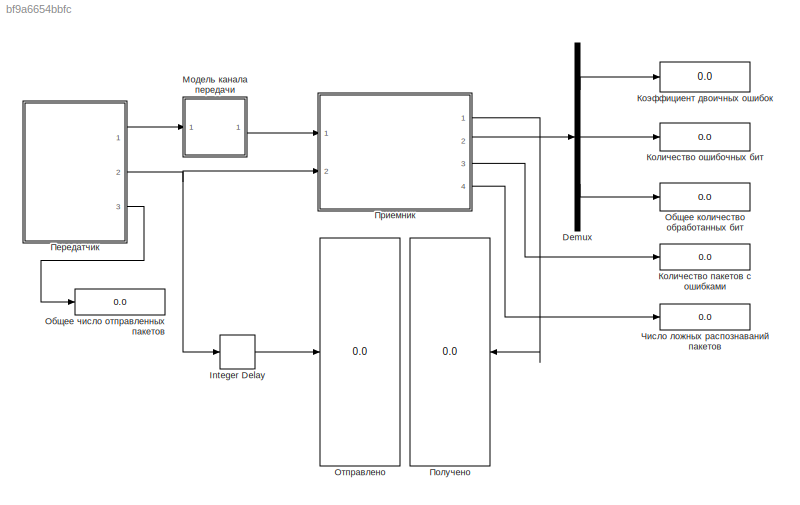
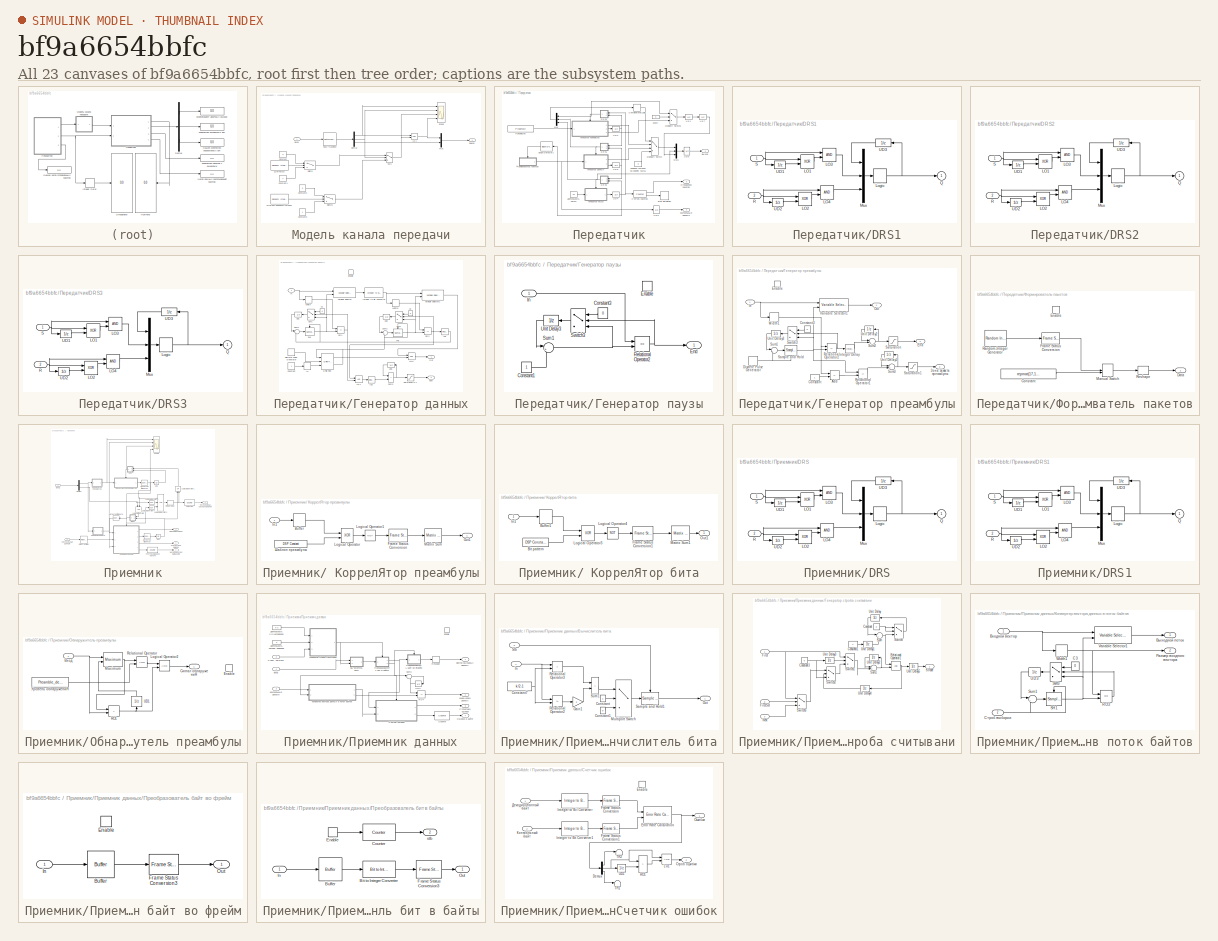
[diagram: thumbnail index - all 23 canvases of the model, root first then tree order]
MODEL slx_bf9a6654bbfc
KIND model
CONFIG AbsTol = auto
CONFIG EnableMultiTasking = on
CONFIG FixedStep = auto
CONFIG MaxStep = auto
CONFIG MinStep = auto
CONFIG PreLoadFcn = initmod
CONFIG RelTol = 1e-3
CONFIG SampleTimeConstraint = Unconstrained
CONFIG SolverName = VariableStepDiscrete
CONFIG StartTime = 0.0
CONFIG StopTime = 1000
BLOCK [Demux] Demux
  DisplayOption = none
  Outputs = 3
  Ports = [1, 3]
BLOCK [Delay] Integer Delay
  DelayLength = 1
  InputPortMap = u0
  Ports = [1, 1]
BLOCK [Display] Количество ошибочных бит
  Decimation = 1
  Ports = [1]
BLOCK [Display] Количество пакетов с ошибками
  Decimation = 1
  Ports = [1]
BLOCK [Display] Коэффициент двоичных ошибок
  Decimation = 1
  Ports = [1]
BLOCK [SubSystem] Модель канала передачи
  Ports = [1, 1]
  RequestExecContextInheritance = off
  TreatAsAtomicUnit = on
BLOCK [Constant] Модель канала передачи/Constant
  Value = 0
BLOCK [Constant] Модель канала передачи/Constant1
BLOCK [Constant] Модель канала передачи/Constant2
  Value = 0
BLOCK [Constant] Модель канала передачи/Constant3
BLOCK [Demux] Модель канала передачи/Demux
  DisplayOption = none
  Outputs = 3
  Ports = [1, 3]
BLOCK [Logic] Модель канала передачи/LO1
  Operator = XOR
  Ports = [2, 1]
BLOCK [Mux] Модель канала передачи/Mux
  DisplayOption = bar
  Inputs = 2
  Ports = [2, 1]
BLOCK [RateTransition] Модель канала передачи/Rate Transition
  Deterministic = off
  OutPortSampleTime = 1/Frc
BLOCK [Switch] Модель канала передачи/SW1
  Threshold = 1
BLOCK [Scope] Модель канала передачи/Scope
  Floating = off
  NumInputPorts = 4
  Ports = [4]
  ScopeSpecificationString = Simulink.scopes.TimeScopeBlockCfg('CurrentConfiguration', extmgr.ConfigurationSet(extmgr.Configuration('Core','General UI',true),extmgr.Configuration('Core','Source UI',true),extmgr.Configuration('Sources','WiredSimulink',true),extmgr.Configuration('Visuals','Time Domain',true,'SerializedDisplays',{struct('MinYLimReal','-0.125','MaxYLimReal','1.125','YLabelReal','','MinYLimMag','0.00000','MaxYLimM...<+3382ch>
BLOCK [Switch] Модель канала передачи/Switch
  InputSameDT = off
  SaturateOnIntegerOverflow = off
  Threshold = 128
BLOCK [Switch] Модель канала передачи/Switch1
  InputSameDT = off
  SaturateOnIntegerOverflow = off
  Threshold = 128
BLOCK [Inport] Модель канала передачи/Вход
BLOCK [Outport] Модель канала передачи/Выход
BLOCK [Reference] Модель канала передачи/Шум паузы  REF=commrandsrc3/Random Integer
Generator
  Ports = [0, 1]
  SourceBlock = commrandsrc3/Random Integer\nGenerator
  SourceProductBaseCode = CM
  SourceType = Random Integer Generator
BLOCK [Reference] Модель канала передачи/Шум при передаче сигнала  REF=commrandsrc3/Random Integer
Generator
  Ports = [0, 1]
  SourceBlock = commrandsrc3/Random Integer\nGenerator
  SourceProductBaseCode = CM
  SourceType = Random Integer Generator
BLOCK [Display] Общее количество обработанных бит
  Decimation = 1
  Ports = [1]
BLOCK [Display] Общее число отправленных пакетов
  Decimation = 1
  Ports = [1]
BLOCK [Display] Отправлено
  Decimation = 1
  Ports = [1]
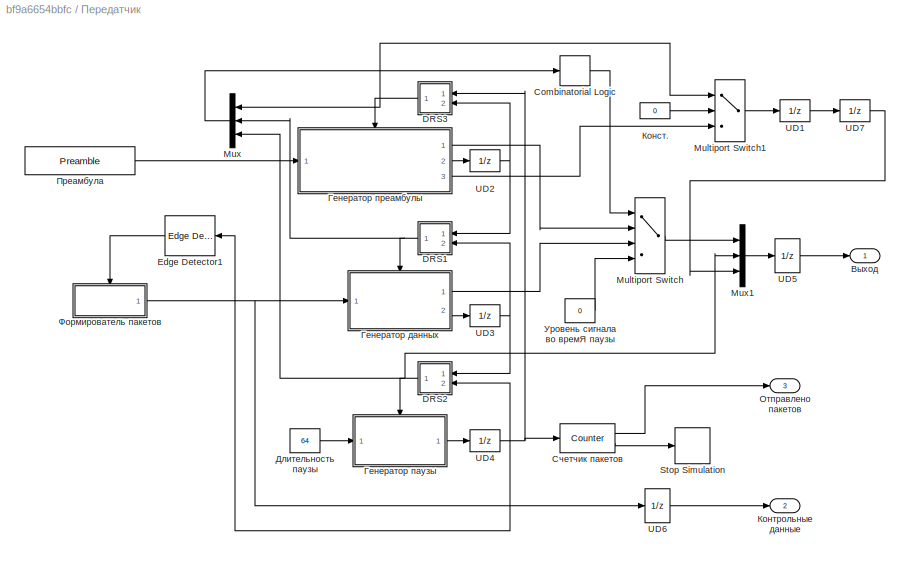
BLOCK [SubSystem] Передатчик
  Ports = [0, 3]
  RequestExecContextInheritance = off
  TreatAsAtomicUnit = on
BLOCK [CombinatorialLogic] Передатчик/Combinatorial Logic
  TruthTable = [1;3;2;2;1;1;1;1]
BLOCK [SubSystem] Передатчик/DRS1
  Ports = [2, 1]
  RequestExecContextInheritance = off
  TreatAsAtomicUnit = on
BLOCK [Logic] Передатчик/DRS1/LO1
  Operator = XOR
  Ports = [2, 1]
BLOCK [Logic] Передатчик/DRS1/LO2
  Operator = XOR
  Ports = [2, 1]
BLOCK [Logic] Передатчик/DRS1/LO3
  Ports = [2, 1]
BLOCK [Logic] Передатчик/DRS1/LO4
  Ports = [2, 1]
BLOCK [CombinatorialLogic] Передатчик/DRS1/Logic
  TruthTable = [0 ;0 ;1 ;0 ;1 ;0 ;1 ;1 ]
BLOCK [Mux] Передатчик/DRS1/Mux
  Inputs = 3
  Ports = [3, 1]
BLOCK [Outport] Передатчик/DRS1/Q
  InitialOutput = 0
BLOCK [Inport] Передатчик/DRS1/R
  Port = 2
BLOCK [Inport] Передатчик/DRS1/S
BLOCK [UnitDelay] Передатчик/DRS1/UD1
  SampleTime = -1
BLOCK [UnitDelay] Передатчик/DRS1/UD2
  SampleTime = -1
BLOCK [UnitDelay] Передатчик/DRS1/UD3
  SampleTime = -1
BLOCK [SubSystem] Передатчик/DRS2
  Ports = [2, 1]
  RequestExecContextInheritance = off
  TreatAsAtomicUnit = on
BLOCK [Logic] Передатчик/DRS2/LO1
  Operator = XOR
  Ports = [2, 1]
BLOCK [Logic] Передатчик/DRS2/LO2
  Operator = XOR
  Ports = [2, 1]
BLOCK [Logic] Передатчик/DRS2/LO3
  Ports = [2, 1]
BLOCK [Logic] Передатчик/DRS2/LO4
  Ports = [2, 1]
BLOCK [CombinatorialLogic] Передатчик/DRS2/Logic
  TruthTable = [0 ;0 ;1 ;0 ;1 ;0 ;1 ;1 ]
BLOCK [Mux] Передатчик/DRS2/Mux
  Inputs = 3
  Ports = [3, 1]
BLOCK [Outport] Передатчик/DRS2/Q
  InitialOutput = 0
BLOCK [Inport] Передатчик/DRS2/R
  Port = 2
BLOCK [Inport] Передатчик/DRS2/S
BLOCK [UnitDelay] Передатчик/DRS2/UD1
  SampleTime = -1
BLOCK [UnitDelay] Передатчик/DRS2/UD2
  SampleTime = -1
BLOCK [UnitDelay] Передатчик/DRS2/UD3
  SampleTime = -1
BLOCK [SubSystem] Передатчик/DRS3
  Ports = [2, 1]
  RequestExecContextInheritance = off
  TreatAsAtomicUnit = on
BLOCK [Logic] Передатчик/DRS3/LO1
  Operator = XOR
  Ports = [2, 1]
BLOCK [Logic] Передатчик/DRS3/LO2
  Operator = XOR
  Ports = [2, 1]
BLOCK [Logic] Передатчик/DRS3/LO3
  Ports = [2, 1]
BLOCK [Logic] Передатчик/DRS3/LO4
  Ports = [2, 1]
BLOCK [CombinatorialLogic] Передатчик/DRS3/Logic
  TruthTable = [0 ;0 ;1 ;0 ;1 ;0 ;1 ;1 ]
BLOCK [Mux] Передатчик/DRS3/Mux
  Inputs = 3
  Ports = [3, 1]
BLOCK [Outport] Передатчик/DRS3/Q
  InitialOutput = 0
BLOCK [Inport] Передатчик/DRS3/R
  Port = 2
BLOCK [Inport] Передатчик/DRS3/S
BLOCK [UnitDelay] Передатчик/DRS3/UD1
  SampleTime = -1
BLOCK [UnitDelay] Передатчик/DRS3/UD2
  SampleTime = -1
BLOCK [UnitDelay] Передатчик/DRS3/UD3
  SampleTime = -1
BLOCK [Reference] Передатчик/Edge Detector1  REF=dspswit3/Edge
Detector
  Ports = [1, 1]
  SourceBlock = dspswit3/Edge\nDetector
  SourceProductBaseCode = DS
  SourceType = Edge Detector
BLOCK [MultiPortSwitch] Передатчик/Multiport Switch
  Ports = [4, 1]
BLOCK [MultiPortSwitch] Передатчик/Multiport Switch1
  DataPortOrder = Zero-based contiguous
  Inputs = 2
  Ports = [3, 1]
  zeroidx = on
BLOCK [Mux] Передатчик/Mux
  DisplayOption = bar
  Inputs = 3
  Ports = [3, 1]
BLOCK [Mux] Передатчик/Mux1
  DisplayOption = bar
  Inputs = 3
  Ports = [3, 1]
BLOCK [Stop] Передатчик/Stop Simulation
BLOCK [UnitDelay] Передатчик/UD1
  SampleTime = -1
BLOCK [UnitDelay] Передатчик/UD2
  SampleTime = -1
BLOCK [UnitDelay] Передатчик/UD3
  InitialCondition = 1
  SampleTime = -1
BLOCK [UnitDelay] Передатчик/UD4
  SampleTime = -1
BLOCK [UnitDelay] Передатчик/UD5
  SampleTime = 1/(Ftr*4)
BLOCK [UnitDelay] Передатчик/UD6
  SampleTime = 1/(Ftr*4)
BLOCK [UnitDelay] Передатчик/UD7
  SampleTime = -1
BLOCK [Outport] Передатчик/Выход
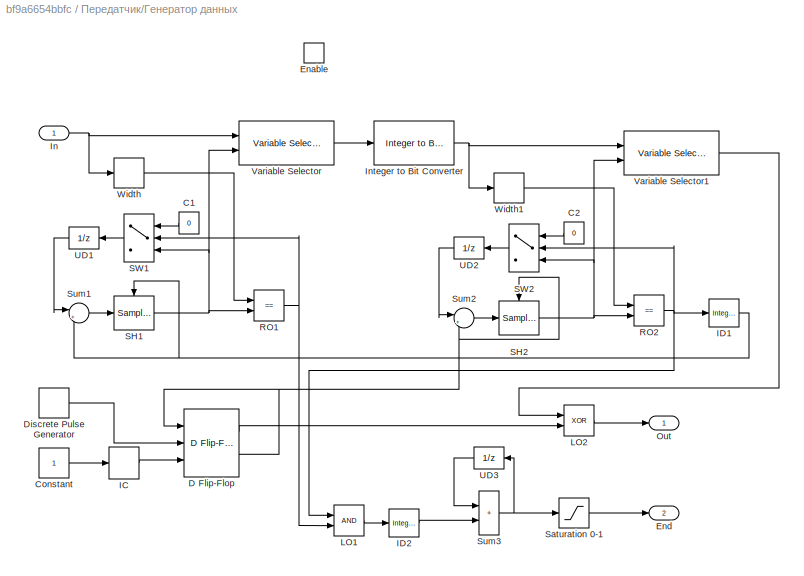
BLOCK [SubSystem] Передатчик/Генератор данных
  Ports = [1, 2, 1]
  RequestExecContextInheritance = off
  TreatAsAtomicUnit = on
BLOCK [Constant] Передатчик/Генератор данных/C1
  NameLocation = top
  Value = 0
BLOCK [Constant] Передатчик/Генератор данных/C2
  NameLocation = top
  Value = 0
BLOCK [Constant] Передатчик/Генератор данных/Constant
BLOCK [Reference] Передатчик/Генератор данных/D Flip-Flop  REF=simulink_extras/Flip Flops/D Flip-Flop
  Ports = [3, 2]
  SourceBlock = simulink_extras/Flip Flops/D Flip-Flop
  SourceProductBaseCode = SL
  SourceType = DFlipFlop
BLOCK [DiscretePulseGenerator] Передатчик/Генератор данных/Discrete Pulse Generator
  Ports = [0, 1]
  SampleTime = 1/(Ftr*4)
BLOCK [EnablePort] Передатчик/Генератор данных/Enable
  Ports = []
  StatesWhenEnabling = reset
BLOCK [Outport] Передатчик/Генератор данных/End
  InitialOutput = [0]
  Port = 2
BLOCK [InitialCondition] Передатчик/Генератор данных/IC
  Value = 0
BLOCK [Reference] Передатчик/Генератор данных/ID1  REF=dspobslib/Integer Delay
  Ports = [1, 1]
  SourceBlock = dspobslib/Integer Delay
  SourceProductBaseCode = DS
  SourceType = Integer Delay
BLOCK [Reference] Передатчик/Генератор данных/ID2  REF=dspobslib/Integer Delay
  Ports = [1, 1]
  SourceBlock = dspobslib/Integer Delay
  SourceProductBaseCode = DS
  SourceType = Integer Delay
BLOCK [Inport] Передатчик/Генератор данных/In
BLOCK [Reference] Передатчик/Генератор данных/Integer to Bit Converter  REF=commutil2/Integer to Bit
Converter
  Ports = [1, 1]
  SourceBlock = commutil2/Integer to Bit\nConverter
  SourceProductBaseCode = CM
  SourceType = Integer to Bit Converter
BLOCK [Logic] Передатчик/Генератор данных/LO1
  Ports = [2, 1]
BLOCK [Logic] Передатчик/Генератор данных/LO2
  Operator = XOR
  Ports = [2, 1]
BLOCK [Outport] Передатчик/Генератор данных/Out
  InitialOutput = [0]
BLOCK [RelationalOperator] Передатчик/Генератор данных/RO1
  Operator = ==
  Ports = [2, 1]
BLOCK [RelationalOperator] Передатчик/Генератор данных/RO2
  Operator = ==
  Ports = [2, 1]
BLOCK [Reference] Передатчик/Генератор данных/SH1  REF=dspsigops/Sample
and Hold
  Ports = [1, 1, 0, 1]
  SourceBlock = dspsigops/Sample\nand Hold
  SourceProductBaseCode = DS
  SourceType = Sample and Hold
BLOCK [Reference] Передатчик/Генератор данных/SH2  REF=dspsigops/Sample
and Hold
  Ports = [1, 1, 0, 1]
  SourceBlock = dspsigops/Sample\nand Hold
  SourceProductBaseCode = DS
  SourceType = Sample and Hold
BLOCK [Switch] Передатчик/Генератор данных/SW1
  Threshold = 1
BLOCK [Switch] Передатчик/Генератор данных/SW2
  Threshold = 1
BLOCK [Saturate] Передатчик/Генератор данных/Saturation 0-1
  LowerLimit = 0
  UpperLimit = 1
BLOCK [Sum] Передатчик/Генератор данных/Sum1
  InputSameDT = on
  Inputs = |++
  NameLocation = top
  OutDataTypeStr = Inherit: Same as first input
  Ports = [2, 1]
  SaturateOnIntegerOverflow = on
BLOCK [Sum] Передатчик/Генератор данных/Sum2
  InputSameDT = on
  Inputs = |++
  NameLocation = top
  OutDataTypeStr = Inherit: Same as first input
  Ports = [2, 1]
  SaturateOnIntegerOverflow = on
BLOCK [Sum] Передатчик/Генератор данных/Sum3
  IconShape = rectangular
  InputSameDT = on
  OutDataTypeStr = Inherit: Same as first input
  Ports = [2, 1]
  SaturateOnIntegerOverflow = on
BLOCK [UnitDelay] Передатчик/Генератор данных/UD1
  SampleTime = -1
BLOCK [UnitDelay] Передатчик/Генератор данных/UD2
  SampleTime = -1
BLOCK [UnitDelay] Передатчик/Генератор данных/UD3
  SampleTime = -1
BLOCK [Reference] Передатчик/Генератор данных/Variable Selector  REF=dspindex/Variable
Selector
  Ports = [2, 1]
  SourceBlock = dspindex/Variable\nSelector
  SourceProductBaseCode = DS
  SourceType = Variable Selector
BLOCK [Reference] Передатчик/Генератор данных/Variable Selector1  REF=dspindex/Variable
Selector
  Ports = [2, 1]
  SourceBlock = dspindex/Variable\nSelector
  SourceProductBaseCode = DS
  SourceType = Variable Selector
BLOCK [Width] Передатчик/Генератор данных/Width
BLOCK [Width] Передатчик/Генератор данных/Width1
BLOCK [SubSystem] Передатчик/Генератор паузы
  Ports = [1, 1, 1]
  RequestExecContextInheritance = off
  TreatAsAtomicUnit = on
BLOCK [Constant] Передатчик/Генератор паузы/Constant1
BLOCK [Constant] Передатчик/Генератор паузы/Constant3
  Value = 0
BLOCK [EnablePort] Передатчик/Генератор паузы/Enable
  Ports = []
  StatesWhenEnabling = reset
BLOCK [Outport] Передатчик/Генератор паузы/End
  InitialOutput = [0]
BLOCK [Inport] Передатчик/Генератор паузы/In
BLOCK [RelationalOperator] Передатчик/Генератор паузы/Relational Operator2
  Operator = ==
  Ports = [2, 1]
BLOCK [Sum] Передатчик/Генератор паузы/Sum1
  InputSameDT = on
  Inputs = |++
  OutDataTypeStr = Inherit: Same as first input
  Ports = [2, 1]
  SaturateOnIntegerOverflow = on
BLOCK [Switch] Передатчик/Генератор паузы/Switch3
  Threshold = 1
BLOCK [UnitDelay] Передатчик/Генератор паузы/Unit Delay3
  SampleTime = -1
BLOCK [SubSystem] Передатчик/Генератор преамбулы
  Ports = [1, 3, 1]
  RequestExecContextInheritance = off
  TreatAsAtomicUnit = on
BLOCK [Sum] Передатчик/Генератор преамбулы/Add
  IconShape = rectangular
  Inputs = +-
  Ports = [2, 1]
BLOCK [Constant] Передатчик/Генератор преамбулы/Constant
BLOCK [Constant] Передатчик/Генератор преамбулы/Constant3
  Value = 0
BLOCK [DiscretePulseGenerator] Передатчик/Генератор преамбулы/Discrete Pulse Generator
  Ports = [0, 1]
  SampleTime = 1/(Ftr*4)
BLOCK [EnablePort] Передатчик/Генератор преамбулы/Enable
  Ports = []
  StatesWhenEnabling = reset
BLOCK [Outport] Передатчик/Генератор преамбулы/End
  InitialOutput = [0]
  Port = 2
BLOCK [Inport] Передатчик/Генератор преамбулы/In
BLOCK [Reference] Передатчик/Генератор преамбулы/Integer Delay  REF=dspobslib/Integer Delay
  Ports = [1, 1]
  SourceBlock = dspobslib/Integer Delay
  SourceProductBaseCode = DS
  SourceType = Integer Delay
BLOCK [Outport] Передатчик/Генератор преамбулы/Out
  InitialOutput = [0]
BLOCK [RelationalOperator] Передатчик/Генератор преамбулы/Relational Operator1
  Operator = ==
  Ports = [2, 1]
BLOCK [RelationalOperator] Передатчик/Генератор преамбулы/Relational Operator2
  Operator = ==
  Ports = [2, 1]
BLOCK [Reference] Передатчик/Генератор преамбулы/Sample and Hold  REF=dspsigops/Sample
and Hold
  NameLocation = top
  Ports = [1, 1, 0, 1]
  SourceBlock = dspsigops/Sample\nand Hold
  SourceProductBaseCode = DS
  SourceType = Sample and Hold
BLOCK [Saturate] Передатчик/Генератор преамбулы/Saturation
  LowerLimit = 0
  UpperLimit = 1
BLOCK [Saturate] Передатчик/Генератор преамбулы/Saturation1
  LowerLimit = 0
  UpperLimit = 1
BLOCK [Sum] Передатчик/Генератор преамбулы/Sum1
  InputSameDT = on
  Inputs = |++
  OutDataTypeStr = Inherit: Same as first input
  Ports = [2, 1]
  SaturateOnIntegerOverflow = on
BLOCK [Sum] Передатчик/Генератор преамбулы/Sum2
  InputSameDT = on
  Inputs = |++
  OutDataTypeStr = Inherit: Same as first input
  Ports = [2, 1]
  SaturateOnIntegerOverflow = on
BLOCK [Sum] Передатчик/Генератор преамбулы/Sum3
  InputSameDT = on
  Inputs = |++
  OutDataTypeStr = Inherit: Same as first input
  Ports = [2, 1]
  SaturateOnIntegerOverflow = on
BLOCK [Switch] Передатчик/Генератор преамбулы/Switch3
  Threshold = 1
BLOCK [UnitDelay] Передатчик/Генератор преамбулы/Unit Delay1
  SampleTime = -1
BLOCK [UnitDelay] Передатчик/Генератор преамбулы/Unit Delay2
  SampleTime = -1
BLOCK [UnitDelay] Передатчик/Генератор преамбулы/Unit Delay3
  SampleTime = -1
BLOCK [Reference] Передатчик/Генератор преамбулы/Variable Selector1  REF=dspindex/Variable
Selector
  Ports = [2, 1]
  SourceBlock = dspindex/Variable\nSelector
  SourceProductBaseCode = DS
  SourceType = Variable Selector
BLOCK [Width] Передатчик/Генератор преамбулы/Width1
BLOCK [Outport] Передатчик/Генератор преамбулы/Зона захвата преамбулы
  InitialOutput = [0]
  Port = 3
BLOCK [Constant] Передатчик/Длительность паузы
  Value = 64
BLOCK [Constant] Передатчик/Конст.
  Value = 0
BLOCK [Outport] Передатчик/Контрольные данные
  Port = 2
BLOCK [Outport] Передатчик/Отправлено пакетов
  Port = 3
BLOCK [Constant] Передатчик/Преамбула
  Value = Preamble
BLOCK [Reference] Передатчик/Счетчик пакетов  REF=dspswit3/Counter
  Ports = [1, 2]
  SourceBlock = dspswit3/Counter
  SourceProductBaseCode = DS
  SourceType = Counter
BLOCK [Constant] Передатчик/Уровень сигнала во времЯ паузы
  Value = 0
BLOCK [SubSystem] Передатчик/Формирователь пакетов
  Ports = [0, 1, 1]
  RequestExecContextInheritance = off
  TreatAsAtomicUnit = on
BLOCK [Constant] Передатчик/Формирователь пакетов/Constant
  OutDataTypeStr = uint8
  Value = repmat(17,1,pack_len)
BLOCK [Outport] Передатчик/Формирователь пакетов/Data
BLOCK [EnablePort] Передатчик/Формирователь пакетов/Enable
  Ports = []
BLOCK [Reference] Передатчик/Формирователь пакетов/Frame Status Conversion  REF=dspobslib/Frame Status
Conversion
  Ports = [1, 1]
  SourceBlock = dspobslib/Frame Status\nConversion
  SourceProductBaseCode = DS
  SourceType = Frame Status Conversion
BLOCK [ManualSwitch] Передатчик/Формирователь пакетов/Manual Switch
BLOCK [Reference] Передатчик/Формирователь пакетов/Random-Integer Generator  REF=commrandsrc2/Random Integer
Generator
  Ports = [0, 1]
  SourceBlock = commrandsrc2/Random Integer\nGenerator
  SourceProductBaseCode = CM
  SourceType = Random Integer Generator
BLOCK [Reshape] Передатчик/Формирователь пакетов/Reshape
  Ports = [1, 1]
BLOCK [Display] Получено
  Decimation = 1
  Ports = [1]
BLOCK [SubSystem] Приемник
  Ports = [2, 4]
  RequestExecContextInheritance = off
  TreatAsAtomicUnit = on
BLOCK [SubSystem] Приемник/ КоррелЯтор бита
  Ports = [1, 1]
  RequestExecContextInheritance = off
  TreatAsAtomicUnit = on
BLOCK [Reference] Приемник/ КоррелЯтор бита/Bit pattern  REF=dspobslib/DSP
Constant
  Ports = [0, 1]
  SourceBlock = dspobslib/DSP\nConstant
  SourceProductBaseCode = DS
  SourceType = DSP Constant
BLOCK [Buffer] Приемник/ КоррелЯтор бита/Buffer1
  N = Bit_pat_len
  V = Bit_pat_len-1
BLOCK [Reference] Приемник/ КоррелЯтор бита/Frame Status Conversion1  REF=dspobslib/Frame Status
Conversion
  Ports = [1, 1]
  SourceBlock = dspobslib/Frame Status\nConversion
  SourceProductBaseCode = DS
  SourceType = Frame Status Conversion
BLOCK [Inport] Приемник/ КоррелЯтор бита/In1
BLOCK [Logic] Приемник/ КоррелЯтор бита/Logical Operator3
  Operator = XOR
  Ports = [2, 1]
BLOCK [Logic] Приемник/ КоррелЯтор бита/Logical Operator4
  Operator = NOT
  Ports = [1, 1]
BLOCK [Reference] Приемник/ КоррелЯтор бита/Matrix Sum1  REF=dspobslib/Matrix
Sum
  Ports = [1, 1]
  SourceBlock = dspobslib/Matrix\nSum
  SourceProductBaseCode = DS
  SourceType = Matrix Sum
BLOCK [Outport] Приемник/ КоррелЯтор бита/Out1
BLOCK [SubSystem] Приемник/ КоррелЯтор преамбулы
  Ports = [1, 1]
  RequestExecContextInheritance = off
  TreatAsAtomicUnit = on
BLOCK [Buffer] Приемник/ КоррелЯтор преамбулы/Buffer
  N = Preamble_pat_len
  V = Preamble_pat_len-1
BLOCK [Reference] Приемник/ КоррелЯтор преамбулы/Frame Status Conversion  REF=dspobslib/Frame Status
Conversion
  Ports = [1, 1]
  SourceBlock = dspobslib/Frame Status\nConversion
  SourceProductBaseCode = DS
  SourceType = Frame Status Conversion
BLOCK [Inport] Приемник/ КоррелЯтор преамбулы/In1
BLOCK [Logic] Приемник/ КоррелЯтор преамбулы/Logical Operator
  Operator = XOR
  Ports = [2, 1]
BLOCK [Logic] Приемник/ КоррелЯтор преамбулы/Logical Operator1
  Operator = NOT
  Ports = [1, 1]
BLOCK [Reference] Приемник/ КоррелЯтор преамбулы/Matrix Sum  REF=dspobslib/Matrix
Sum
  Ports = [1, 1]
  SourceBlock = dspobslib/Matrix\nSum
  SourceProductBaseCode = DS
  SourceType = Matrix Sum
BLOCK [Outport] Приемник/ КоррелЯтор преамбулы/Out1
BLOCK [Reference] Приемник/ КоррелЯтор преамбулы/Шаблон преамбулы  REF=dspobslib/DSP
Constant
  Ports = [0, 1]
  SourceBlock = dspobslib/DSP\nConstant
  SourceProductBaseCode = DS
  SourceType = DSP Constant
BLOCK [SubSystem] Приемник/DRS
  Ports = [2, 1]
  RequestExecContextInheritance = off
  TreatAsAtomicUnit = on
BLOCK [Logic] Приемник/DRS/LO1
  Operator = XOR
  Ports = [2, 1]
BLOCK [Logic] Приемник/DRS/LO2
  Operator = XOR
  Ports = [2, 1]
BLOCK [Logic] Приемник/DRS/LO3
  Ports = [2, 1]
BLOCK [Logic] Приемник/DRS/LO4
  Ports = [2, 1]
BLOCK [CombinatorialLogic] Приемник/DRS/Logic
  TruthTable = [0 ;0 ;1 ;0 ;1 ;0 ;1 ;1 ]
BLOCK [Mux] Приемник/DRS/Mux
  Inputs = 3
  Ports = [3, 1]
BLOCK [Outport] Приемник/DRS/Q
  InitialOutput = 0
BLOCK [Inport] Приемник/DRS/R
  Port = 2
BLOCK [Inport] Приемник/DRS/S
BLOCK [UnitDelay] Приемник/DRS/UD1
  SampleTime = -1
BLOCK [UnitDelay] Приемник/DRS/UD2
  SampleTime = -1
BLOCK [UnitDelay] Приемник/DRS/UD3
  SampleTime = -1
BLOCK [SubSystem] Приемник/DRS1
  Ports = [2, 1]
  RequestExecContextInheritance = off
  TreatAsAtomicUnit = on
BLOCK [Logic] Приемник/DRS1/LO1
  Operator = XOR
  Ports = [2, 1]
BLOCK [Logic] Приемник/DRS1/LO2
  Operator = XOR
  Ports = [2, 1]
BLOCK [Logic] Приемник/DRS1/LO3
  Ports = [2, 1]
BLOCK [Logic] Приемник/DRS1/LO4
  Ports = [2, 1]
BLOCK [CombinatorialLogic] Приемник/DRS1/Logic
  TruthTable = [0 ;0 ;1 ;0 ;1 ;0 ;1 ;1 ]
BLOCK [Mux] Приемник/DRS1/Mux
  Inputs = 3
  Ports = [3, 1]
BLOCK [Outport] Приемник/DRS1/Q
  InitialOutput = 0
BLOCK [Inport] Приемник/DRS1/R
  Port = 2
BLOCK [Inport] Приемник/DRS1/S
BLOCK [UnitDelay] Приемник/DRS1/UD1
  SampleTime = -1
BLOCK [UnitDelay] Приемник/DRS1/UD2
  SampleTime = -1
BLOCK [UnitDelay] Приемник/DRS1/UD3
  SampleTime = -1
BLOCK [Demux] Приемник/Demux
  Outputs = 2
  Ports = [1, 2]
BLOCK [Delay] Приемник/Integer Delay
  InputPortMap = u0
  Ports = [1, 1]
BLOCK [Logic] Приемник/Logical Operator
  AllPortsSameDT = off
  NameLocation = left
  Ports = [2, 1]
BLOCK [Logic] Приемник/Logical Operator1
  AllPortsSameDT = off
  NameLocation = left
  Operator = OR
  Ports = [2, 1]
BLOCK [Logic] Приемник/Logical Operator2
  AllPortsSameDT = off
  Inputs = 3
  NameLocation = top
  Ports = [3, 1]
BLOCK [Logic] Приемник/Logical Operator3
  AllPortsSameDT = off
  Inputs = 1
  NameLocation = top
  Operator = NOT
  OutDataTypeStr = boolean
  Ports = [1, 1]
BLOCK [Logic] Приемник/Logical Operator4
  AllPortsSameDT = off
  Inputs = 1
  NameLocation = top
  Operator = NOT
  OutDataTypeStr = boolean
  Ports = [1, 1]
BLOCK [RateTransition] Приемник/Rate Transition
  Deterministic = off
  OutPortSampleTime = 1/Frc
BLOCK [Scope] Приемник/Scope
  Floating = off
  NumInputPorts = 4
  Ports = [4]
  ScopeSpecificationString = Simulink.scopes.TimeScopeBlockCfg('CurrentConfiguration', extmgr.ConfigurationSet(extmgr.Configuration('Core','General UI',true),extmgr.Configuration('Core','Source UI',true),extmgr.Configuration('Sources','WiredSimulink',true,'DataLoggingVariableName','ScopeData1'),extmgr.Configuration('Visuals','Time Domain',true,'SerializedDisplays',{struct('MinYLimReal','9.5','MaxYLimReal','54.5','YLabelReal',...<+3431ch>
BLOCK [UnitDelay] Приемник/UD1
  SampleTime = -1
BLOCK [UnitDelay] Приемник/UD2
  InitialCondition = 1
  SampleTime = -1
BLOCK [Inport] Приемник/Вход 
BLOCK [Outport] Приемник/Выход декодера
BLOCK [Reference] Приемник/Детектор фронта  REF=dspswit3/Edge
Detector
  Ports = [1, 1]
  SourceBlock = dspswit3/Edge\nDetector
  SourceProductBaseCode = DS
  SourceType = Edge Detector
BLOCK [Reference] Приемник/Детектор фронта1  REF=dspswit3/Edge
Detector
  NameLocation = top
  Ports = [1, 1]
  SourceBlock = dspswit3/Edge\nDetector
  SourceProductBaseCode = DS
  SourceType = Edge Detector
BLOCK [Reference] Приемник/Детектор фронта2  REF=dspswit3/Edge
Detector
  NameLocation = top
  Ports = [1, 1]
  SourceBlock = dspswit3/Edge\nDetector
  SourceProductBaseCode = DS
  SourceType = Edge Detector
BLOCK [Inport] Приемник/Контрольные данные
  Port = 2
BLOCK [SubSystem] Приемник/Обнаружитель преамбулы
  Ports = [1, 1, 1]
  RequestExecContextInheritance = off
  TreatAsAtomicUnit = on
BLOCK [EnablePort] Приемник/Обнаружитель преамбулы/Enable
  Ports = []
  StatesWhenEnabling = reset
BLOCK [Logic] Приемник/Обнаружитель преамбулы/Logical Operator2
  Ports = [2, 1]
BLOCK [Reference] Приемник/Обнаружитель преамбулы/Maximum  REF=dspstat3/Maximum
  Ports = [2, 1]
  SourceBlock = dspstat3/Maximum
  SourceProductBaseCode = DS
  SourceType = Maximum
BLOCK [RelationalOperator] Приемник/Обнаружитель преамбулы/RO1
  Operator = >
  Ports = [2, 1]
BLOCK [RelationalOperator] Приемник/Обнаружитель преамбулы/Relational Operator
  Ports = [2, 1]
BLOCK [UnitDelay] Приемник/Обнаружитель преамбулы/UD1
  NameLocation = right
  SampleTime = -1
BLOCK [Inport] Приемник/Обнаружитель преамбулы/Вход
BLOCK [Outport] Приемник/Обнаружитель преамбулы/Сигнал обнаружениЯ
  InitialOutput = [0]
BLOCK [Constant] Приемник/Обнаружитель преамбулы/Уровень обнаружениЯ
  Value = Preamble_decis_levl
BLOCK [SubSystem] Приемник/Приемник данных
  Ports = [3, 4, 1]
  RequestExecContextInheritance = off
  TreatAsAtomicUnit = on
BLOCK [Reference] Приемник/Приемник данных/Counter  REF=dspswit3/Counter
  Ports = [1, 1]
  SourceBlock = dspswit3/Counter
  SourceProductBaseCode = DS
  SourceType = Counter
BLOCK [EnablePort] Приемник/Приемник данных/Enable
  Ports = []
  StatesWhenEnabling = reset
BLOCK [RelationalOperator] Приемник/Приемник данных/RO4
  Operator = ==
  Ports = [2, 1]
BLOCK [Reshape] Приемник/Приемник данных/Reshape
  Ports = [1, 1]
BLOCK [Sum] Приемник/Приемник данных/Sum3
  InputSameDT = on
  Inputs = |++
  NameLocation = top
  OutDataTypeStr = Inherit: Same as first input
  Ports = [2, 1]
  SaturateOnIntegerOverflow = on
BLOCK [UnitDelay] Приемник/Приемник данных/UD2
  SampleTime = -1
BLOCK [Outport] Приемник/Приемник данных/Вектор выходных данных
  InitialOutput = [0]
BLOCK [Inport] Приемник/Приемник данных/Вход
BLOCK [SubSystem] Приемник/Приемник данных/Вычислитель бита
  Ports = [2, 1]
  RequestExecContextInheritance = off
  TreatAsAtomicUnit = on
BLOCK [Constant] Приемник/Приемник данных/Вычислитель бита/Constant
BLOCK [Constant] Приемник/Приемник данных/Вычислитель бита/Constant1
  Value = 0
BLOCK [Constant] Приемник/Приемник данных/Вычислитель бита/Constant7
  Value = k/2-1
BLOCK [Gain] Приемник/Приемник данных/Вычислитель бита/Gain1
  Gain = 2
  OutDataTypeStr = Inherit: Same as input
  ParamDataTypeStr = Inherit: Same as input
  SaturateOnIntegerOverflow = on
BLOCK [Inport] Приемник/Приемник данных/Вычислитель бита/In
BLOCK [MultiPortSwitch] Приемник/Приемник данных/Вычислитель бита/Multiport Switch
  Inputs = 2
  Ports = [3, 1]
BLOCK [Outport] Приемник/Приемник данных/Вычислитель бита/Out
BLOCK [RelationalOperator] Приемник/Приемник данных/Вычислитель бита/Relational Operator2
  Operator = <=
  Ports = [2, 1]
BLOCK [RelationalOperator] Приемник/Приемник данных/Вычислитель бита/Relational Operator3
  Operator = >
  Ports = [2, 1]
BLOCK [Reference] Приемник/Приемник данных/Вычислитель бита/Sample and Hold1  REF=dspsigops/Sample
and Hold
  Ports = [1, 1, 0, 1]
  SourceBlock = dspsigops/Sample\nand Hold
  SourceProductBaseCode = DS
  SourceType = Sample and Hold
BLOCK [Inport] Приемник/Приемник данных/Вычислитель бита/Stb
  Port = 2
BLOCK [Sum] Приемник/Приемник данных/Вычислитель бита/Sum1
  IconShape = rectangular
  InputSameDT = on
  OutDataTypeStr = Inherit: Same as first input
  Ports = [2, 1]
  SaturateOnIntegerOverflow = on
BLOCK [SubSystem] Приемник/Приемник данных/Генератор строба считывани
  Ports = [3, 1]
  RequestExecContextInheritance = off
BLOCK [Constant] Приемник/Приемник данных/Генератор строба считывани/Constant
  Value = 0
BLOCK [Constant] Приемник/Приемник данных/Генератор строба считывани/Constant1
BLOCK [Constant] Приемник/Приемник данных/Генератор строба считывани/Constant3
  Value = 0
BLOCK [Inport] Приемник/Приемник данных/Генератор строба считывани/First
BLOCK [Inport] Приемник/Приемник данных/Генератор строба считывани/FirstSel
  Port = 3
BLOCK [Inport] Приемник/Приемник данных/Генератор строба считывани/Next
  Port = 2
BLOCK [RelationalOperator] Приемник/Приемник данных/Генератор строба считывани/Relational Operator1
  Ports = [2, 1]
BLOCK [Outport] Приемник/Приемник данных/Генератор строба считывани/Strobe
BLOCK [Sum] Приемник/Приемник данных/Генератор строба считывани/Sum
  InputSameDT = on
  Inputs = |++
  OutDataTypeStr = Inherit: Same as first input
  Ports = [2, 1]
  SaturateOnIntegerOverflow = on
BLOCK [Sum] Приемник/Приемник данных/Генератор строба считывани/Sum1
  InputSameDT = on
  Inputs = |++
  OutDataTypeStr = Inherit: Same as first input
  Ports = [2, 1]
  SaturateOnIntegerOverflow = on
BLOCK [Switch] Приемник/Приемник данных/Генератор строба считывани/Switch
  Threshold = 1
BLOCK [Switch] Приемник/Приемник данных/Генератор строба считывани/Switch1
  Threshold = 1
BLOCK [Switch] Приемник/Приемник данных/Генератор строба считывани/Switch2
  Threshold = 1
BLOCK [Switch] Приемник/Приемник данных/Генератор строба считывани/Switch3
  Threshold = 1
BLOCK [UnitDelay] Приемник/Приемник данных/Генератор строба считывани/Unit Delay
  SampleTime = -1
BLOCK [UnitDelay] Приемник/Приемник данных/Генератор строба считывани/Unit Delay1
  SampleTime = -1
BLOCK [UnitDelay] Приемник/Приемник данных/Генератор строба считывани/Unit Delay2
  SampleTime = -1
BLOCK [UnitDelay] Приемник/Приемник данных/Генератор строба считывани/Unit Delay3
  InitialCondition = 1
  SampleTime = -1
BLOCK [UnitDelay] Приемник/Приемник данных/Генератор строба считывани/Unit Delay4
  SampleTime = -1
BLOCK [UnitDelay] Приемник/Приемник данных/Генератор строба считывани/Unit Delay5
  SampleTime = -1
BLOCK [Constant] Приемник/Приемник данных/Длительность 1-го интервала
  Value = k-3
BLOCK [Constant] Приемник/Приемник данных/Длительность последующих интервалов
  Value = k
BLOCK [SubSystem] Приемник/Приемник данных/Конвертер вектора данных в поток байтов
  Ports = [2, 2]
  RequestExecContextInheritance = off
  TreatAsAtomicUnit = on
BLOCK [Constant] Приемник/Приемник данных/Конвертер вектора данных в поток байтов/C3
  NameLocation = top
  Value = 0
BLOCK [RelationalOperator] Приемник/Приемник данных/Конвертер вектора данных в поток байтов/RO2
  Operator = ==
  Ports = [2, 1]
BLOCK [Reference] Приемник/Приемник данных/Конвертер вектора данных в поток байтов/SH1  REF=dspsigops/Sample
and Hold
  Ports = [1, 1, 0, 1]
  SourceBlock = dspsigops/Sample\nand Hold
  SourceProductBaseCode = DS
  SourceType = Sample and Hold
BLOCK [Switch] Приемник/Приемник данных/Конвертер вектора данных в поток байтов/SW3
  Threshold = 1
BLOCK [Sum] Приемник/Приемник данных/Конвертер вектора данных в поток байтов/Sum1
  InputSameDT = on
  Inputs = |++
  NameLocation = top
  OutDataTypeStr = Inherit: Same as first input
  Ports = [2, 1]
  SaturateOnIntegerOverflow = on
BLOCK [UnitDelay] Приемник/Приемник данных/Конвертер вектора данных в поток байтов/UD3
  SampleTime = -1
BLOCK [Reference] Приемник/Приемник данных/Конвертер вектора данных в поток байтов/Variable Selector1  REF=dspindex/Variable
Selector
  Ports = [2, 1]
  SourceBlock = dspindex/Variable\nSelector
  SourceProductBaseCode = DS
  SourceType = Variable Selector
BLOCK [Width] Приемник/Приемник данных/Конвертер вектора данных в поток байтов/Width1
BLOCK [Inport] Приемник/Приемник данных/Конвертер вектора данных в поток байтов/Входной вектор
BLOCK [Outport] Приемник/Приемник данных/Конвертер вектора данных в поток байтов/Выходной поток
BLOCK [Outport] Приемник/Приемник данных/Конвертер вектора данных в поток байтов/Размер входного вектора
  Port = 2
BLOCK [Inport] Приемник/Приемник данных/Конвертер вектора данных в поток байтов/Строб выборки
  Port = 2
BLOCK [Outport] Приемник/Приемник данных/Конец блока данных
  InitialOutput = [0]
  Port = 2
BLOCK [Inport] Приемник/Приемник данных/Контрольные данные
  Port = 2
BLOCK [Outport] Приемник/Приемник данных/Ошибка в байте
  InitialOutput = [0]
  OutputWhenDisabled = reset
  Port = 4
BLOCK [SubSystem] Приемник/Приемник данных/Преобразователь байт во фрейм
  Ports = [1, 1, 1]
  RequestExecContextInheritance = off
  TreatAsAtomicUnit = on
BLOCK [Buffer] Приемник/Приемник данных/Преобразователь байт во фрейм/Buffer
  N = pack_len
  V = pack_len-1
BLOCK [EnablePort] Приемник/Приемник данных/Преобразователь байт во фрейм/Enable
  Ports = []
BLOCK [Reference] Приемник/Приемник данных/Преобразователь байт во фрейм/Frame Status Conversion3  REF=dspobslib/Frame Status
Conversion
  Ports = [1, 1]
  SourceBlock = dspobslib/Frame Status\nConversion
  SourceProductBaseCode = DS
  SourceType = Frame Status Conversion
BLOCK [Inport] Приемник/Приемник данных/Преобразователь байт во фрейм/In
BLOCK [Outport] Приемник/Приемник данных/Преобразователь байт во фрейм/Out
BLOCK [SubSystem] Приемник/Приемник данных/Преобразователь бит в байты
  Ports = [1, 2, 1]
  RequestExecContextInheritance = off
  TreatAsAtomicUnit = on
BLOCK [Reference] Приемник/Приемник данных/Преобразователь бит в байты/Bit to Integer Converter  REF=commutil2/Bit to Integer
Converter
  Ports = [1, 1]
  SourceBlock = commutil2/Bit to Integer\nConverter
  SourceProductBaseCode = CM
  SourceType = Bit to Integer Converter
BLOCK [Buffer] Приемник/Приемник данных/Преобразователь бит в байты/Buffer
  N = 8
  V = 7
BLOCK [Reference] Приемник/Приемник данных/Преобразователь бит в байты/Counter  REF=dspswit3/Counter
  Ports = [1, 1]
  SourceBlock = dspswit3/Counter
  SourceProductBaseCode = DS
  SourceType = Counter
BLOCK [EnablePort] Приемник/Приемник данных/Преобразователь бит в байты/Enable
  Ports = [0, 1]
  ShowOutputPort = on
BLOCK [Reference] Приемник/Приемник данных/Преобразователь бит в байты/Frame Status Conversion3  REF=dspobslib/Frame Status
Conversion
  Ports = [1, 1]
  SourceBlock = dspobslib/Frame Status\nConversion
  SourceProductBaseCode = DS
  SourceType = Frame Status Conversion
BLOCK [Inport] Приемник/Приемник данных/Преобразователь бит в байты/In
BLOCK [Outport] Приемник/Приемник данных/Преобразователь бит в байты/Out
BLOCK [Outport] Приемник/Приемник данных/Преобразователь бит в байты/stb
  InitialOutput = [0]
  OutputWhenDisabled = reset
  Port = 2
BLOCK [Inport] Приемник/Приемник данных/Старт. импульс
  Port = 3
BLOCK [Outport] Приемник/Приемник данных/Статистика ошибок
  InitialOutput = [0]
  Port = 3
BLOCK [SubSystem] Приемник/Приемник данных/Счетчик ошибок
  Ports = [2, 2, 1]
  RequestExecContextInheritance = off
  TreatAsAtomicUnit = on
BLOCK [Demux] Приемник/Приемник данных/Счетчик ошибок/Demux
  DisplayOption = none
  Outputs = 3
  Ports = [1, 3]
BLOCK [EnablePort] Приемник/Приемник данных/Счетчик ошибок/Enable
  Ports = []
BLOCK [Reference] Приемник/Приемник данных/Счетчик ошибок/Error Rate Calculation  REF=commsink2/Error Rate
Calculation
  Ports = [2, 1]
  SourceBlock = commsink2/Error Rate\nCalculation
  SourceProductBaseCode = CM
  SourceType = Error Rate Calculation
BLOCK [Reference] Приемник/Приемник данных/Счетчик ошибок/Frame Status Conversion  REF=dspobslib/Frame Status
Conversion
  Ports = [1, 1]
  SourceBlock = dspobslib/Frame Status\nConversion
  SourceProductBaseCode = DS
  SourceType = Frame Status Conversion
BLOCK [Reference] Приемник/Приемник данных/Счетчик ошибок/Frame Status Conversion1  REF=dspobslib/Frame Status
Conversion
  Ports = [1, 1]
  SourceBlock = dspobslib/Frame Status\nConversion
  SourceProductBaseCode = DS
  SourceType = Frame Status Conversion
BLOCK [Reference] Приемник/Приемник данных/Счетчик ошибок/Integer to Bit Converter  REF=commutil2/Integer to Bit
Converter
  Ports = [1, 1]
  SourceBlock = commutil2/Integer to Bit\nConverter
  SourceProductBaseCode = CM
  SourceType = Integer to Bit Converter
BLOCK [Reference] Приемник/Приемник данных/Счетчик ошибок/Integer to Bit Converter1  REF=commutil2/Integer to Bit
Converter
  Ports = [1, 1]
  SourceBlock = commutil2/Integer to Bit\nConverter
  SourceProductBaseCode = CM
  SourceType = Integer to Bit Converter
BLOCK [Logic] Приемник/Приемник данных/Счетчик ошибок/LO1
  Ports = [2, 1]
BLOCK [RelationalOperator] Приемник/Приемник данных/Счетчик ошибок/RO1
  Operator = >
  Ports = [2, 1]
BLOCK [Terminator] Приемник/Приемник данных/Счетчик ошибок/TR1
BLOCK [Terminator] Приемник/Приемник данных/Счетчик ошибок/TR2
BLOCK [UnitDelay] Приемник/Приемник данных/Счетчик ошибок/UD1
  SampleTime = -1
BLOCK [Inport] Приемник/Приемник данных/Счетчик ошибок/Декодированный байт
BLOCK [Inport] Приемник/Приемник данных/Счетчик ошибок/Контрольный байт
  Port = 2
BLOCK [Outport] Приемник/Приемник данных/Счетчик ошибок/Ошибки
BLOCK [Outport] Приемник/Приемник данных/Счетчик ошибок/Строб ошибки
  InitialOutput = [0]
  OutputWhenDisabled = reset
  Port = 2
BLOCK [Outport] Приемник/Статистика ошибок
  Port = 2
BLOCK [Reference] Приемник/Счетчик   REF=dspswit3/Counter
  Ports = [1, 1]
  SourceBlock = dspswit3/Counter
  SourceProductBaseCode = DS
  SourceType = Counter
BLOCK [Reference] Приемник/Счетчик ошибок в пакете  REF=dspswit3/Counter
  Ports = [1, 1]
  SourceBlock = dspswit3/Counter
  SourceProductBaseCode = DS
  SourceType = Counter
BLOCK [Outport] Приемник/Число ложных распознаваний
  Port = 4
BLOCK [Outport] Приемник/Число пакетов с ошибками
  Port = 3
BLOCK [Display] Число ложных распознаваний пакетов
  Decimation = 1
  Ports = [1]
LINE Demux:1 -> Коэффициент двоичных ошибок:1
LINE Demux:2 -> Количество ошибочных бит:1
LINE Demux:3 -> Общее количество обработанных бит:1
LINE Integer Delay:1 -> Отправлено:1
LINE Модель канала передачи/Constant1:1 -> Модель канала передачи/Switch:3
LINE Модель канала передачи/Constant2:1 -> Модель канала передачи/Switch1:1
LINE Модель канала передачи/Constant3:1 -> Модель канала передачи/Switch1:3
LINE Модель канала передачи/Constant:1 -> Модель канала передачи/Switch:1
NET Модель канала передачи/Demux:1 -> Модель канала передачи/LO1:1, Модель канала передачи/Scope:1
NET Модель канала передачи/Demux:2 -> Модель канала передачи/SW1:2, Модель канала передачи/Scope:2
LINE Модель канала передачи/Demux:3 -> Модель канала передачи/Mux:2
NET Модель канала передачи/LO1:1 -> Модель канала передачи/Mux:1, Модель канала передачи/Scope:4
LINE Модель канала передачи/Mux:1 -> Модель канала передачи/Выход:1
LINE Модель канала передачи/Rate Transition:1 -> Модель канала передачи/Demux:1
NET Модель канала передачи/SW1:1 -> Модель канала передачи/LO1:2, Модель канала передачи/Scope:3
LINE Модель канала передачи/Switch1:1 -> Модель канала передачи/SW1:3
LINE Модель канала передачи/Switch:1 -> Модель канала передачи/SW1:1
LINE Модель канала передачи/Вход:1 -> Модель канала передачи/Rate Transition:1
LINE Модель канала передачи/Шум паузы:1 -> Модель канала передачи/Switch:2
LINE Модель канала передачи/Шум при передаче сигнала:1 -> Модель канала передачи/Switch1:2
LINE Модель канала передачи:1 -> Приемник:1
LINE Передатчик/Combinatorial Logic:1 -> Передатчик/Multiport Switch:1
LINE Передатчик/DRS1/LO1:1 -> Передатчик/DRS1/LO3:2
LINE Передатчик/DRS1/LO2:1 -> Передатчик/DRS1/LO4:2
LINE Передатчик/DRS1/LO3:1 -> Передатчик/DRS1/Mux:2
LINE Передатчик/DRS1/LO4:1 -> Передатчик/DRS1/Mux:3
NET Передатчик/DRS1/Logic:1 -> Передатчик/DRS1/Q:1, Передатчик/DRS1/UD3:1
LINE Передатчик/DRS1/Mux:1 -> Передатчик/DRS1/Logic:1
NET Передатчик/DRS1/R:1 -> Передатчик/DRS1/LO2:1, Передатчик/DRS1/LO4:1, Передатчик/DRS1/UD2:1
NET Передатчик/DRS1/S:1 -> Передатчик/DRS1/LO1:1, Передатчик/DRS1/LO3:1, Передатчик/DRS1/UD1:1
LINE Передатчик/DRS1/UD1:1 -> Передатчик/DRS1/LO1:2
LINE Передатчик/DRS1/UD2:1 -> Передатчик/DRS1/LO2:2
LINE Передатчик/DRS1/UD3:1 -> Передатчик/DRS1/Mux:1
NET Передатчик/DRS1:1 -> Передатчик/Mux:2, Передатчик/Генератор данных:enable
LINE Передатчик/DRS2/LO1:1 -> Передатчик/DRS2/LO3:2
LINE Передатчик/DRS2/LO2:1 -> Передатчик/DRS2/LO4:2
LINE Передатчик/DRS2/LO3:1 -> Передатчик/DRS2/Mux:2
LINE Передатчик/DRS2/LO4:1 -> Передатчик/DRS2/Mux:3
NET Передатчик/DRS2/Logic:1 -> Передатчик/DRS2/Q:1, Передатчик/DRS2/UD3:1
LINE Передатчик/DRS2/Mux:1 -> Передатчик/DRS2/Logic:1
NET Передатчик/DRS2/R:1 -> Передатчик/DRS2/LO2:1, Передатчик/DRS2/LO4:1, Передатчик/DRS2/UD2:1
NET Передатчик/DRS2/S:1 -> Передатчик/DRS2/LO1:1, Передатчик/DRS2/LO3:1, Передатчик/DRS2/UD1:1
LINE Передатчик/DRS2/UD1:1 -> Передатчик/DRS2/LO1:2
LINE Передатчик/DRS2/UD2:1 -> Передатчик/DRS2/LO2:2
LINE Передатчик/DRS2/UD3:1 -> Передатчик/DRS2/Mux:1
NET Передатчик/DRS2:1 -> Передатчик/Mux1:2, Передатчик/Mux:3, Передатчик/Генератор паузы:enable
LINE Передатчик/DRS3/LO1:1 -> Передатчик/DRS3/LO3:2
LINE Передатчик/DRS3/LO2:1 -> Передатчик/DRS3/LO4:2
LINE Передатчик/DRS3/LO3:1 -> Передатчик/DRS3/Mux:2
LINE Передатчик/DRS3/LO4:1 -> Передатчик/DRS3/Mux:3
NET Передатчик/DRS3/Logic:1 -> Передатчик/DRS3/Q:1, Передатчик/DRS3/UD3:1
LINE Передатчик/DRS3/Mux:1 -> Передатчик/DRS3/Logic:1
NET Передатчик/DRS3/R:1 -> Передатчик/DRS3/LO2:1, Передатчик/DRS3/LO4:1, Передатчик/DRS3/UD2:1
NET Передатчик/DRS3/S:1 -> Передатчик/DRS3/LO1:1, Передатчик/DRS3/LO3:1, Передатчик/DRS3/UD1:1
LINE Передатчик/DRS3/UD1:1 -> Передатчик/DRS3/LO1:2
LINE Передатчик/DRS3/UD2:1 -> Передатчик/DRS3/LO2:2
LINE Передатчик/DRS3/UD3:1 -> Передатчик/DRS3/Mux:1
NET Передатчик/DRS3:1 -> Передатчик/Multiport Switch1:1, Передатчик/Mux:1, Передатчик/Генератор преамбулы:enable
LINE Передатчик/Edge Detector1:1 -> Передатчик/Формирователь пакетов:enable
LINE Передатчик/Multiport Switch1:1 -> Передатчик/UD1:1
LINE Передатчик/Multiport Switch:1 -> Передатчик/Mux1:1
LINE Передатчик/Mux1:1 -> Передатчик/UD5:1
LINE Передатчик/Mux:1 -> Передатчик/Combinatorial Logic:1
LINE Передатчик/UD1:1 -> Передатчик/UD7:1
NET Передатчик/UD2:1 -> Передатчик/DRS1:1, Передатчик/DRS3:2
NET Передатчик/UD3:1 -> Передатчик/DRS1:2, Передатчик/DRS2:1
NET Передатчик/UD4:1 -> Передатчик/DRS2:2, Передатчик/DRS3:1, Передатчик/Edge Detector1:1, Передатчик/Счетчик пакетов:1
LINE Передатчик/UD5:1 -> Передатчик/Выход:1
LINE Передатчик/UD6:1 -> Передатчик/Контрольные данные:1
LINE Передатчик/UD7:1 -> Передатчик/Mux1:3
LINE Передатчик/Генератор данных/C1:1 -> Передатчик/Генератор данных/SW1:1
LINE Передатчик/Генератор данных/C2:1 -> Передатчик/Генератор данных/SW2:1
LINE Передатчик/Генератор данных/Constant:1 -> Передатчик/Генератор данных/IC:1
LINE Передатчик/Генератор данных/D Flip-Flop:1 -> Передатчик/Генератор данных/LO2:2
NET Передатчик/Генератор данных/D Flip-Flop:2 -> Передатчик/Генератор данных/D Flip-Flop:1, Передатчик/Генератор данных/SH2:trigger, Передатчик/Генератор данных/Sum2:2
LINE Передатчик/Генератор данных/Discrete Pulse Generator:1 -> Передатчик/Генератор данных/D Flip-Flop:2
LINE Передатчик/Генератор данных/IC:1 -> Передатчик/Генератор данных/D Flip-Flop:3
NET Передатчик/Генератор данных/ID1:1 -> Передатчик/Генератор данных/SH1:trigger, Передатчик/Генератор данных/Sum1:2
LINE Передатчик/Генератор данных/ID2:1 -> Передатчик/Генератор данных/Sum3:2
NET Передатчик/Генератор данных/In:1 -> Передатчик/Генератор данных/Variable Selector:1, Передатчик/Генератор данных/Width:1
NET Передатчик/Генератор данных/Integer to Bit Converter:1 -> Передатчик/Генератор данных/Variable Selector1:1, Передатчик/Генератор данных/Width1:1
LINE Передатчик/Генератор данных/LO1:1 -> Передатчик/Генератор данных/ID2:1
LINE Передатчик/Генератор данных/LO2:1 -> Передатчик/Генератор данных/Out:1
NET Передатчик/Генератор данных/RO1:1 -> Передатчик/Генератор данных/LO1:2, Передатчик/Генератор данных/SW1:2
NET Передатчик/Генератор данных/RO2:1 -> Передатчик/Генератор данных/ID1:1, Передатчик/Генератор данных/LO1:1, Передатчик/Генератор данных/SW2:2
NET Передатчик/Генератор данных/SH1:1 -> Передатчик/Генератор данных/RO1:2, Передатчик/Генератор данных/SW1:3, Передатчик/Генератор данных/Variable Selector:2
NET Передатчик/Генератор данных/SH2:1 -> Передатчик/Генератор данных/RO2:2, Передатчик/Генератор данных/SW2:3, Передатчик/Генератор данных/Variable Selector1:2
LINE Передатчик/Генератор данных/SW1:1 -> Передатчик/Генератор данных/UD1:1
LINE Передатчик/Генератор данных/SW2:1 -> Передатчик/Генератор данных/UD2:1
LINE Передатчик/Генератор данных/Saturation 0-1:1 -> Передатчик/Генератор данных/End:1
LINE Передатчик/Генератор данных/Sum1:1 -> Передатчик/Генератор данных/SH1:1
LINE Передатчик/Генератор данных/Sum2:1 -> Передатчик/Генератор данных/SH2:1
NET Передатчик/Генератор данных/Sum3:1 -> Передатчик/Генератор данных/Saturation 0-1:1, Передатчик/Генератор данных/UD3:1
LINE Передатчик/Генератор данных/UD1:1 -> Передатчик/Генератор данных/Sum1:1
LINE Передатчик/Генератор данных/UD2:1 -> Передатчик/Генератор данных/Sum2:1
LINE Передатчик/Генератор данных/UD3:1 -> Передатчик/Генератор данных/Sum3:1
LINE Передатчик/Генератор данных/Variable Selector1:1 -> Передатчик/Генератор данных/LO2:1
LINE Передатчик/Генератор данных/Variable Selector:1 -> Передатчик/Генератор данных/Integer to Bit Converter:1
LINE Передатчик/Генератор данных/Width1:1 -> Передатчик/Генератор данных/RO2:1
LINE Передатчик/Генератор данных/Width:1 -> Передатчик/Генератор данных/RO1:1
LINE Передатчик/Генератор данных:1 -> Передатчик/Multiport Switch:3
LINE Передатчик/Генератор данных:2 -> Передатчик/UD3:1
LINE Передатчик/Генератор паузы/Constant1:1 -> Передатчик/Генератор паузы/Sum1:2
LINE Передатчик/Генератор паузы/Constant3:1 -> Передатчик/Генератор паузы/Switch3:1
LINE Передатчик/Генератор паузы/In:1 -> Передатчик/Генератор паузы/Relational Operator2:1
NET Передатчик/Генератор паузы/Relational Operator2:1 -> Передатчик/Генератор паузы/End:1, Передатчик/Генератор паузы/Switch3:2
NET Передатчик/Генератор паузы/Sum1:1 -> Передатчик/Генератор паузы/Relational Operator2:2, Передатчик/Генератор паузы/Switch3:3
LINE Передатчик/Генератор паузы/Switch3:1 -> Передатчик/Генератор паузы/Unit Delay3:1
LINE Передатчик/Генератор паузы/Unit Delay3:1 -> Передатчик/Генератор паузы/Sum1:1
LINE Передатчик/Генератор паузы:1 -> Передатчик/UD4:1
LINE Передатчик/Генератор преамбулы/Add:1 -> Передатчик/Генератор преамбулы/Relational Operator1:2
LINE Передатчик/Генератор преамбулы/Constant3:1 -> Передатчик/Генератор преамбулы/Switch3:1
LINE Передатчик/Генератор преамбулы/Constant:1 -> Передатчик/Генератор преамбулы/Add:2
NET Передатчик/Генератор преамбулы/Discrete Pulse Generator:1 -> Передатчик/Генератор преамбулы/Sample and Hold:trigger, Передатчик/Генератор преамбулы/Sum1:2
NET Передатчик/Генератор преамбулы/In:1 -> Передатчик/Генератор преамбулы/Variable Selector1:1, Передатчик/Генератор преамбулы/Width1:1
LINE Передатчик/Генератор преамбулы/Integer Delay:1 -> Передатчик/Генератор преамбулы/Sum2:2
LINE Передатчик/Генератор преамбулы/Relational Operator1:1 -> Передатчик/Генератор преамбулы/Sum3:2
NET Передатчик/Генератор преамбулы/Relational Operator2:1 -> Передатчик/Генератор преамбулы/Integer Delay:1, Передатчик/Генератор преамбулы/Switch3:2
NET Передатчик/Генератор преамбулы/Sample and Hold:1 -> Передатчик/Генератор преамбулы/Relational Operator1:1, Передатчик/Генератор преамбулы/Relational Operator2:2, Передатчик/Генератор преамбулы/Switch3:3, Передатчик/Генератор преамбулы/Variable Selector1:2
LINE Передатчик/Генератор преамбулы/Saturation1:1 -> Передатчик/Генератор преамбулы/Зона захвата преамбулы:1
LINE Передатчик/Генератор преамбулы/Saturation:1 -> Передатчик/Генератор преамбулы/End:1
LINE Передатчик/Генератор преамбулы/Sum1:1 -> Передатчик/Генератор преамбулы/Sample and Hold:1
NET Передатчик/Генератор преамбулы/Sum2:1 -> Передатчик/Генератор преамбулы/Saturation:1, Передатчик/Генератор преамбулы/Unit Delay2:1
NET Передатчик/Генератор преамбулы/Sum3:1 -> Передатчик/Генератор преамбулы/Saturation1:1, Передатчик/Генератор преамбулы/Unit Delay1:1
LINE Передатчик/Генератор преамбулы/Switch3:1 -> Передатчик/Генератор преамбулы/Unit Delay3:1
LINE Передатчик/Генератор преамбулы/Unit Delay1:1 -> Передатчик/Генератор преамбулы/Sum3:1
LINE Передатчик/Генератор преамбулы/Unit Delay2:1 -> Передатчик/Генератор преамбулы/Sum2:1
LINE Передатчик/Генератор преамбулы/Unit Delay3:1 -> Передатчик/Генератор преамбулы/Sum1:1
LINE Передатчик/Генератор преамбулы/Variable Selector1:1 -> Передатчик/Генератор преамбулы/Out:1
NET Передатчик/Генератор преамбулы/Width1:1 -> Передатчик/Генератор преамбулы/Add:1, Передатчик/Генератор преамбулы/Relational Operator2:1
LINE Передатчик/Генератор преамбулы:1 -> Передатчик/Multiport Switch:2
LINE Передатчик/Генератор преамбулы:2 -> Передатчик/UD2:1
LINE Передатчик/Генератор преамбулы:3 -> Передатчик/Multiport Switch1:3
LINE Передатчик/Длительность паузы:1 -> Передатчик/Генератор паузы:1
LINE Передатчик/Конст.:1 -> Передатчик/Multiport Switch1:2
LINE Передатчик/Преамбула:1 -> Передатчик/Генератор преамбулы:1
LINE Передатчик/Счетчик пакетов:1 -> Передатчик/Отправлено пакетов:1
LINE Передатчик/Счетчик пакетов:2 -> Передатчик/Stop Simulation:1
LINE Передатчик/Уровень сигнала во времЯ паузы:1 -> Передатчик/Multiport Switch:4
LINE Передатчик/Формирователь пакетов/Constant:1 -> Передатчик/Формирователь пакетов/Manual Switch:2
LINE Передатчик/Формирователь пакетов/Frame Status Conversion:1 -> Передатчик/Формирователь пакетов/Manual Switch:1
LINE Передатчик/Формирователь пакетов/Manual Switch:1 -> Передатчик/Формирователь пакетов/Reshape:1
LINE Передатчик/Формирователь пакетов/Random-Integer Generator:1 -> Передатчик/Формирователь пакетов/Frame Status Conversion:1
LINE Передатчик/Формирователь пакетов/Reshape:1 -> Передатчик/Формирователь пакетов/Data:1
NET Передатчик/Формирователь пакетов:1 -> Передатчик/UD6:1, Передатчик/Генератор данных:1
LINE Передатчик:1 -> Модель канала передачи:1
NET Передатчик:2 -> Integer Delay:1, Приемник:2
LINE Передатчик:3 -> Общее число отправленных пакетов:1
LINE Приемник/ КоррелЯтор бита/Bit pattern:1 -> Приемник/ КоррелЯтор бита/Logical Operator3:2
LINE Приемник/ КоррелЯтор бита/Buffer1:1 -> Приемник/ КоррелЯтор бита/Logical Operator3:1
LINE Приемник/ КоррелЯтор бита/Frame Status Conversion1:1 -> Приемник/ КоррелЯтор бита/Matrix Sum1:1
LINE Приемник/ КоррелЯтор бита/In1:1 -> Приемник/ КоррелЯтор бита/Buffer1:1
LINE Приемник/ КоррелЯтор бита/Logical Operator3:1 -> Приемник/ КоррелЯтор бита/Logical Operator4:1
LINE Приемник/ КоррелЯтор бита/Logical Operator4:1 -> Приемник/ КоррелЯтор бита/Frame Status Conversion1:1
LINE Приемник/ КоррелЯтор бита/Matrix Sum1:1 -> Приемник/ КоррелЯтор бита/Out1:1
NET Приемник/ КоррелЯтор бита:1 -> Приемник/Scope:2, Приемник/Приемник данных:1
LINE Приемник/ КоррелЯтор преамбулы/Buffer:1 -> Приемник/ КоррелЯтор преамбулы/Logical Operator:1
LINE Приемник/ КоррелЯтор преамбулы/Frame Status Conversion:1 -> Приемник/ КоррелЯтор преамбулы/Matrix Sum:1
LINE Приемник/ КоррелЯтор преамбулы/In1:1 -> Приемник/ КоррелЯтор преамбулы/Buffer:1
LINE Приемник/ КоррелЯтор преамбулы/Logical Operator1:1 -> Приемник/ КоррелЯтор преамбулы/Frame Status Conversion:1
LINE Приемник/ КоррелЯтор преамбулы/Logical Operator:1 -> Приемник/ КоррелЯтор преамбулы/Logical Operator1:1
LINE Приемник/ КоррелЯтор преамбулы/Matrix Sum:1 -> Приемник/ КоррелЯтор преамбулы/Out1:1
LINE Приемник/ КоррелЯтор преамбулы/Шаблон преамбулы:1 -> Приемник/ КоррелЯтор преамбулы/Logical Operator:2
NET Приемник/ КоррелЯтор преамбулы:1 -> Приемник/Scope:1, Приемник/Обнаружитель преамбулы:1
LINE Приемник/DRS/LO1:1 -> Приемник/DRS/LO3:2
LINE Приемник/DRS/LO2:1 -> Приемник/DRS/LO4:2
LINE Приемник/DRS/LO3:1 -> Приемник/DRS/Mux:2
LINE Приемник/DRS/LO4:1 -> Приемник/DRS/Mux:3
NET Приемник/DRS/Logic:1 -> Приемник/DRS/Q:1, Приемник/DRS/UD3:1
LINE Приемник/DRS/Mux:1 -> Приемник/DRS/Logic:1
NET Приемник/DRS/R:1 -> Приемник/DRS/LO2:1, Приемник/DRS/LO4:1, Приемник/DRS/UD2:1
NET Приемник/DRS/S:1 -> Приемник/DRS/LO1:1, Приемник/DRS/LO3:1, Приемник/DRS/UD1:1
LINE Приемник/DRS/UD1:1 -> Приемник/DRS/LO1:2
LINE Приемник/DRS/UD2:1 -> Приемник/DRS/LO2:2
LINE Приемник/DRS/UD3:1 -> Приемник/DRS/Mux:1
LINE Приемник/DRS1/LO1:1 -> Приемник/DRS1/LO3:2
LINE Приемник/DRS1/LO2:1 -> Приемник/DRS1/LO4:2
LINE Приемник/DRS1/LO3:1 -> Приемник/DRS1/Mux:2
LINE Приемник/DRS1/LO4:1 -> Приемник/DRS1/Mux:3
NET Приемник/DRS1/Logic:1 -> Приемник/DRS1/Q:1, Приемник/DRS1/UD3:1
LINE Приемник/DRS1/Mux:1 -> Приемник/DRS1/Logic:1
NET Приемник/DRS1/R:1 -> Приемник/DRS1/LO2:1, Приемник/DRS1/LO4:1, Приемник/DRS1/UD2:1
NET Приемник/DRS1/S:1 -> Приемник/DRS1/LO1:1, Приемник/DRS1/LO3:1, Приемник/DRS1/UD1:1
LINE Приемник/DRS1/UD1:1 -> Приемник/DRS1/LO1:2
LINE Приемник/DRS1/UD2:1 -> Приемник/DRS1/LO2:2
LINE Приемник/DRS1/UD3:1 -> Приемник/DRS1/Mux:1
NET Приемник/DRS1:1 -> Приемник/Logical Operator4:1, Приемник/Scope:4, Приемник/Детектор фронта:1, Приемник/Приемник данных:enable
NET Приемник/DRS:1 -> Приемник/Scope:3, Приемник/Обнаружитель преамбулы:enable
NET Приемник/Demux:1 -> Приемник/ КоррелЯтор бита:1, Приемник/ КоррелЯтор преамбулы:1
NET Приемник/Demux:2 -> Приемник/Logical Operator3:1, Приемник/Logical Operator:1
NET Приемник/Integer Delay:1 -> Приемник/Logical Operator1:2, Приемник/Счетчик :1
LINE Приемник/Logical Operator1:1 -> Приемник/DRS:1
LINE Приемник/Logical Operator2:1 -> Приемник/Integer Delay:1
LINE Приемник/Logical Operator3:1 -> Приемник/Logical Operator2:2
LINE Приемник/Logical Operator4:1 -> Приемник/Logical Operator2:3
LINE Приемник/Logical Operator:1 -> Приемник/DRS1:1
LINE Приемник/Rate Transition:1 -> Приемник/Приемник данных:2
LINE Приемник/UD1:1 -> Приемник/DRS:2
NET Приемник/UD2:1 -> Приемник/DRS1:2, Приемник/Logical Operator1:1
LINE Приемник/Вход :1 -> Приемник/Demux:1
NET Приемник/Детектор фронта1:1 -> Приемник/Logical Operator2:1, Приемник/Logical Operator:2, Приемник/UD1:1
LINE Приемник/Детектор фронта2:1 -> Приемник/UD2:1
LINE Приемник/Детектор фронта:1 -> Приемник/Приемник данных:3
LINE Приемник/Контрольные данные:1 -> Приемник/Rate Transition:1
LINE Приемник/Обнаружитель преамбулы/Logical Operator2:1 -> Приемник/Обнаружитель преамбулы/Сигнал обнаружениЯ:1
NET Приемник/Обнаружитель преамбулы/Maximum:1 -> Приемник/Обнаружитель преамбулы/RO1:1, Приемник/Обнаружитель преамбулы/Relational Operator:1
NET Приемник/Обнаружитель преамбулы/RO1:1 -> Приемник/Обнаружитель преамбулы/Logical Operator2:2, Приемник/Обнаружитель преамбулы/UD1:1
LINE Приемник/Обнаружитель преамбулы/Relational Operator:1 -> Приемник/Обнаружитель преамбулы/Logical Operator2:1
LINE Приемник/Обнаружитель преамбулы/UD1:1 -> Приемник/Обнаружитель преамбулы/Maximum:2
NET Приемник/Обнаружитель преамбулы/Вход:1 -> Приемник/Обнаружитель преамбулы/Maximum:1, Приемник/Обнаружитель преамбулы/RO1:2
LINE Приемник/Обнаружитель преамбулы/Уровень обнаружениЯ:1 -> Приемник/Обнаружитель преамбулы/Relational Operator:2
LINE Приемник/Обнаружитель преамбулы:1 -> Приемник/Детектор фронта1:1
LINE Приемник/Приемник данных/Counter:1 -> Приемник/Приемник данных/Ошибка в байте:1
LINE Приемник/Приемник данных/RO4:1 -> Приемник/Приемник данных/Конец блока данных:1
LINE Приемник/Приемник данных/Reshape:1 -> Приемник/Приемник данных/Вектор выходных данных:1
LINE Приемник/Приемник данных/Sum3:1 -> Приемник/Приемник данных/UD2:1
NET Приемник/Приемник данных/UD2:1 -> Приемник/Приемник данных/RO4:1, Приемник/Приемник данных/Sum3:2
LINE Приемник/Приемник данных/Вход:1 -> Приемник/Приемник данных/Вычислитель бита:1
LINE Приемник/Приемник данных/Вычислитель бита/Constant1:1 -> Приемник/Приемник данных/Вычислитель бита/Multiport Switch:3
NET Приемник/Приемник данных/Вычислитель бита/Constant7:1 -> Приемник/Приемник данных/Вычислитель бита/Relational Operator2:2, Приемник/Приемник данных/Вычислитель бита/Relational Operator3:2
LINE Приемник/Приемник данных/Вычислитель бита/Constant:1 -> Приемник/Приемник данных/Вычислитель бита/Multiport Switch:2
LINE Приемник/Приемник данных/Вычислитель бита/Gain1:1 -> Приемник/Приемник данных/Вычислитель бита/Sum1:2
NET Приемник/Приемник данных/Вычислитель бита/In:1 -> Приемник/Приемник данных/Вычислитель бита/Relational Operator2:1, Приемник/Приемник данных/Вычислитель бита/Relational Operator3:1
LINE Приемник/Приемник данных/Вычислитель бита/Multiport Switch:1 -> Приемник/Приемник данных/Вычислитель бита/Sample and Hold1:1
LINE Приемник/Приемник данных/Вычислитель бита/Relational Operator2:1 -> Приемник/Приемник данных/Вычислитель бита/Gain1:1
LINE Приемник/Приемник данных/Вычислитель бита/Relational Operator3:1 -> Приемник/Приемник данных/Вычислитель бита/Sum1:1
LINE Приемник/Приемник данных/Вычислитель бита/Sample and Hold1:1 -> Приемник/Приемник данных/Вычислитель бита/Out:1
LINE Приемник/Приемник данных/Вычислитель бита/Stb:1 -> Приемник/Приемник данных/Вычислитель бита/Sample and Hold1:trigger
LINE Приемник/Приемник данных/Вычислитель бита/Sum1:1 -> Приемник/Приемник данных/Вычислитель бита/Multiport Switch:1
LINE Приемник/Приемник данных/Вычислитель бита:1 -> Приемник/Приемник данных/Преобразователь бит в байты:1
LINE Приемник/Приемник данных/Генератор строба считывани/Constant1:1 -> Приемник/Приемник данных/Генератор строба считывани/Unit Delay1:1
NET Приемник/Приемник данных/Генератор строба считывани/Constant3:1 -> Приемник/Приемник данных/Генератор строба считывани/Switch2:3, Приемник/Приемник данных/Генератор строба считывани/Unit Delay3:1
NET Приемник/Приемник данных/Генератор строба считывани/Constant:1 -> Приемник/Приемник данных/Генератор строба считывани/Switch:1, Приемник/Приемник данных/Генератор строба считывани/Switch:2
NET Приемник/Приемник данных/Генератор строба считывани/First:1 -> Приемник/Приемник данных/Генератор строба считывани/Switch1:1, Приемник/Приемник данных/Генератор строба считывани/Switch3:1
LINE Приемник/Приемник данных/Генератор строба считывани/FirstSel:1 -> Приемник/Приемник данных/Генератор строба считывани/Switch3:2
LINE Приемник/Приемник данных/Генератор строба считывани/Next:1 -> Приемник/Приемник данных/Генератор строба считывани/Switch3:3
NET Приемник/Приемник данных/Генератор строба считывани/Relational Operator1:1 -> Приемник/Приемник данных/Генератор строба считывани/Unit Delay4:1, Приемник/Приемник данных/Генератор строба считывани/Unit Delay5:1
NET Приемник/Приемник данных/Генератор строба считывани/Sum1:1 -> Приемник/Приемник данных/Генератор строба считывани/Relational Operator1:2, Приемник/Приемник данных/Генератор строба считывани/Unit Delay2:1
NET Приемник/Приемник данных/Генератор строба считывани/Sum:1 -> Приемник/Приемник данных/Генератор строба считывани/Relational Operator1:1, Приемник/Приемник данных/Генератор строба считывани/Switch:3
LINE Приемник/Приемник данных/Генератор строба считывани/Switch1:1 -> Приемник/Приемник данных/Генератор строба считывани/Sum1:2
LINE Приемник/Приемник данных/Генератор строба считывани/Switch2:1 -> Приемник/Приемник данных/Генератор строба считывани/Switch1:3
LINE Приемник/Приемник данных/Генератор строба считывани/Switch3:1 -> Приемник/Приемник данных/Генератор строба считывани/Switch2:1
LINE Приемник/Приемник данных/Генератор строба считывани/Switch:1 -> Приемник/Приемник данных/Генератор строба считывани/Unit Delay:1
LINE Приемник/Приемник данных/Генератор строба считывани/Unit Delay1:1 -> Приемник/Приемник данных/Генератор строба считывани/Sum:2
LINE Приемник/Приемник данных/Генератор строба считывани/Unit Delay2:1 -> Приемник/Приемник данных/Генератор строба считывани/Sum1:1
LINE Приемник/Приемник данных/Генератор строба считывани/Unit Delay3:1 -> Приемник/Приемник данных/Генератор строба считывани/Switch1:2
LINE Приемник/Приемник данных/Генератор строба считывани/Unit Delay4:1 -> Приемник/Приемник данных/Генератор строба считывани/Switch2:2
LINE Приемник/Приемник данных/Генератор строба считывани/Unit Delay5:1 -> Приемник/Приемник данных/Генератор строба считывани/Strobe:1
LINE Приемник/Приемник данных/Генератор строба считывани/Unit Delay:1 -> Приемник/Приемник данных/Генератор строба считывани/Sum:1
NET Приемник/Приемник данных/Генератор строба считывани:1 -> Приемник/Приемник данных/Вычислитель бита:2, Приемник/Приемник данных/Преобразователь бит в байты:enable
LINE Приемник/Приемник данных/Длительность 1-го интервала:1 -> Приемник/Приемник данных/Генератор строба считывани:1
LINE Приемник/Приемник данных/Длительность последующих интервалов:1 -> Приемник/Приемник данных/Генератор строба считывани:2
LINE Приемник/Приемник данных/Конвертер вектора данных в поток байтов/C3:1 -> Приемник/Приемник данных/Конвертер вектора данных в поток байтов/SW3:1
LINE Приемник/Приемник данных/Конвертер вектора данных в поток байтов/RO2:1 -> Приемник/Приемник данных/Конвертер вектора данных в поток байтов/SW3:2
NET Приемник/Приемник данных/Конвертер вектора данных в поток байтов/SH1:1 -> Приемник/Приемник данных/Конвертер вектора данных в поток байтов/RO2:2, Приемник/Приемник данных/Конвертер вектора данных в поток байтов/SW3:3, Приемник/Приемник данных/Конвертер вектора данных в поток байтов/Variable Selector1:2
LINE Приемник/Приемник данных/Конвертер вектора данных в поток байтов/SW3:1 -> Приемник/Приемник данных/Конвертер вектора данных в поток байтов/UD3:1
LINE Приемник/Приемник данных/Конвертер вектора данных в поток байтов/Sum1:1 -> Приемник/Приемник данных/Конвертер вектора данных в поток байтов/SH1:1
LINE Приемник/Приемник данных/Конвертер вектора данных в поток байтов/UD3:1 -> Приемник/Приемник данных/Конвертер вектора данных в поток байтов/Sum1:1
LINE Приемник/Приемник данных/Конвертер вектора данных в поток байтов/Variable Selector1:1 -> Приемник/Приемник данных/Конвертер вектора данных в поток байтов/Выходной поток:1
NET Приемник/Приемник данных/Конвертер вектора данных в поток байтов/Width1:1 -> Приемник/Приемник данных/Конвертер вектора данных в поток байтов/RO2:1, Приемник/Приемник данных/Конвертер вектора данных в поток байтов/Размер входного вектора:1
NET Приемник/Приемник данных/Конвертер вектора данных в поток байтов/Входной вектор:1 -> Приемник/Приемник данных/Конвертер вектора данных в поток байтов/Variable Selector1:1, Приемник/Приемник данных/Конвертер вектора данных в поток байтов/Width1:1
NET Приемник/Приемник данных/Конвертер вектора данных в поток байтов/Строб выборки:1 -> Приемник/Приемник данных/Конвертер вектора данных в поток байтов/SH1:trigger, Приемник/Приемник данных/Конвертер вектора данных в поток байтов/Sum1:2
LINE Приемник/Приемник данных/Конвертер вектора данных в поток байтов:1 -> Приемник/Приемник данных/Счетчик ошибок:2
LINE Приемник/Приемник данных/Конвертер вектора данных в поток байтов:2 -> Приемник/Приемник данных/RO4:2
LINE Приемник/Приемник данных/Контрольные данные:1 -> Приемник/Приемник данных/Конвертер вектора данных в поток байтов:1
LINE Приемник/Приемник данных/Преобразователь байт во фрейм/Buffer:1 -> Приемник/Приемник данных/Преобразователь байт во фрейм/Frame Status Conversion3:1
LINE Приемник/Приемник данных/Преобразователь байт во фрейм/Frame Status Conversion3:1 -> Приемник/Приемник данных/Преобразователь байт во фрейм/Out:1
LINE Приемник/Приемник данных/Преобразователь байт во фрейм/In:1 -> Приемник/Приемник данных/Преобразователь байт во фрейм/Buffer:1
LINE Приемник/Приемник данных/Преобразователь байт во фрейм:1 -> Приемник/Приемник данных/Reshape:1
LINE Приемник/Приемник данных/Преобразователь бит в байты/Bit to Integer Converter:1 -> Приемник/Приемник данных/Преобразователь бит в байты/Frame Status Conversion3:1
LINE Приемник/Приемник данных/Преобразователь бит в байты/Buffer:1 -> Приемник/Приемник данных/Преобразователь бит в байты/Bit to Integer Converter:1
LINE Приемник/Приемник данных/Преобразователь бит в байты/Counter:1 -> Приемник/Приемник данных/Преобразователь бит в байты/stb:1
LINE Приемник/Приемник данных/Преобразователь бит в байты/Enable:1 -> Приемник/Приемник данных/Преобразователь бит в байты/Counter:1
LINE Приемник/Приемник данных/Преобразователь бит в байты/Frame Status Conversion3:1 -> Приемник/Приемник данных/Преобразователь бит в байты/Out:1
LINE Приемник/Приемник данных/Преобразователь бит в байты/In:1 -> Приемник/Приемник данных/Преобразователь бит в байты/Buffer:1
NET Приемник/Приемник данных/Преобразователь бит в байты:1 -> Приемник/Приемник данных/Преобразователь байт во фрейм:1, Приемник/Приемник данных/Счетчик ошибок:1
NET Приемник/Приемник данных/Преобразователь бит в байты:2 -> Приемник/Приемник данных/Sum3:1, Приемник/Приемник данных/Конвертер вектора данных в поток байтов:2, Приемник/Приемник данных/Преобразователь байт во фрейм:enable, Приемник/Приемник данных/Счетчик ошибок:enable
LINE Приемник/Приемник данных/Старт. импульс:1 -> Приемник/Приемник данных/Генератор строба считывани:3
LINE Приемник/Приемник данных/Счетчик ошибок/Demux:1 -> Приемник/Приемник данных/Счетчик ошибок/TR2:1
NET Приемник/Приемник данных/Счетчик ошибок/Demux:2 -> Приемник/Приемник данных/Счетчик ошибок/LO1:1, Приемник/Приемник данных/Счетчик ошибок/RO1:1, Приемник/Приемник данных/Счетчик ошибок/UD1:1
LINE Приемник/Приемник данных/Счетчик ошибок/Demux:3 -> Приемник/Приемник данных/Счетчик ошибок/TR1:1
NET Приемник/Приемник данных/Счетчик ошибок/Error Rate Calculation:1 -> Приемник/Приемник данных/Счетчик ошибок/Demux:1, Приемник/Приемник данных/Счетчик ошибок/Ошибки:1
LINE Приемник/Приемник данных/Счетчик ошибок/Frame Status Conversion1:1 -> Приемник/Приемник данных/Счетчик ошибок/Error Rate Calculation:2
LINE Приемник/Приемник данных/Счетчик ошибок/Frame Status Conversion:1 -> Приемник/Приемник данных/Счетчик ошибок/Error Rate Calculation:1
LINE Приемник/Приемник данных/Счетчик ошибок/Integer to Bit Converter1:1 -> Приемник/Приемник данных/Счетчик ошибок/Frame Status Conversion1:1
LINE Приемник/Приемник данных/Счетчик ошибок/Integer to Bit Converter:1 -> Приемник/Приемник данных/Счетчик ошибок/Frame Status Conversion:1
LINE Приемник/Приемник данных/Счетчик ошибок/LO1:1 -> Приемник/Приемник данных/Счетчик ошибок/Строб ошибки:1
LINE Приемник/Приемник данных/Счетчик ошибок/RO1:1 -> Приемник/Приемник данных/Счетчик ошибок/LO1:2
LINE Приемник/Приемник данных/Счетчик ошибок/UD1:1 -> Приемник/Приемник данных/Счетчик ошибок/RO1:2
LINE Приемник/Приемник данных/Счетчик ошибок/Декодированный байт:1 -> Приемник/Приемник данных/Счетчик ошибок/Integer to Bit Converter:1
LINE Приемник/Приемник данных/Счетчик ошибок/Контрольный байт:1 -> Приемник/Приемник данных/Счетчик ошибок/Integer to Bit Converter1:1
LINE Приемник/Приемник данных/Счетчик ошибок:1 -> Приемник/Приемник данных/Статистика ошибок:1
LINE Приемник/Приемник данных/Счетчик ошибок:2 -> Приемник/Приемник данных/Counter:1
LINE Приемник/Приемник данных:1 -> Приемник/Выход декодера:1
LINE Приемник/Приемник данных:2 -> Приемник/Детектор фронта2:1
LINE Приемник/Приемник данных:3 -> Приемник/Статистика ошибок:1
LINE Приемник/Приемник данных:4 -> Приемник/Счетчик ошибок в пакете:1
LINE Приемник/Счетчик :1 -> Приемник/Число ложных распознаваний:1
LINE Приемник/Счетчик ошибок в пакете:1 -> Приемник/Число пакетов с ошибками:1
LINE Приемник:1 -> Получено:1
LINE Приемник:2 -> Demux:1
LINE Приемник:3 -> Количество пакетов с ошибками:1
LINE Приемник:4 -> Число ложных распознаваний пакетов:1
note: NET lines group one-source signal fan-out (src -> all destinations, sorted); 1:1 wires keep LINE
